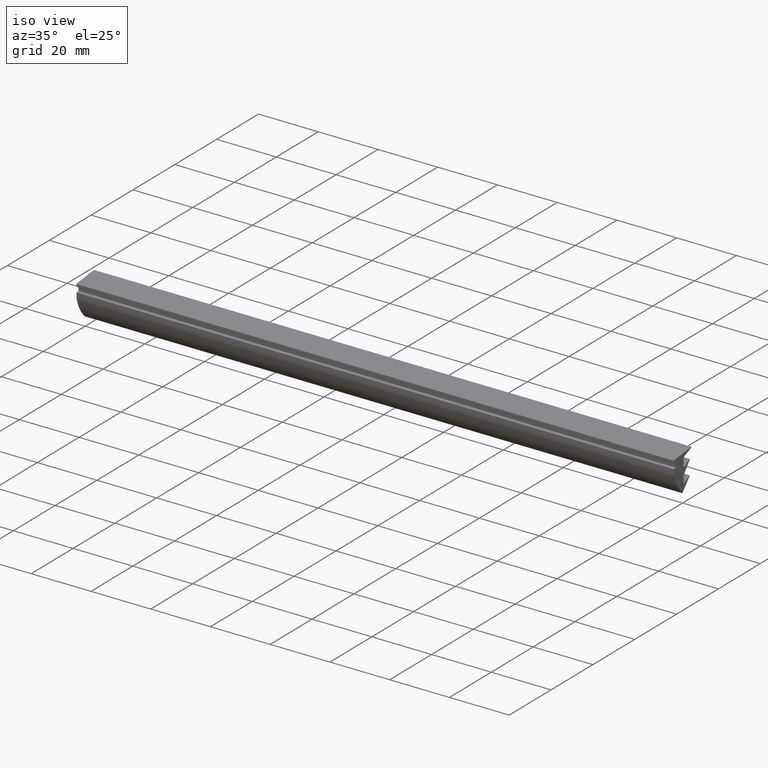
[diagram: clean part render]
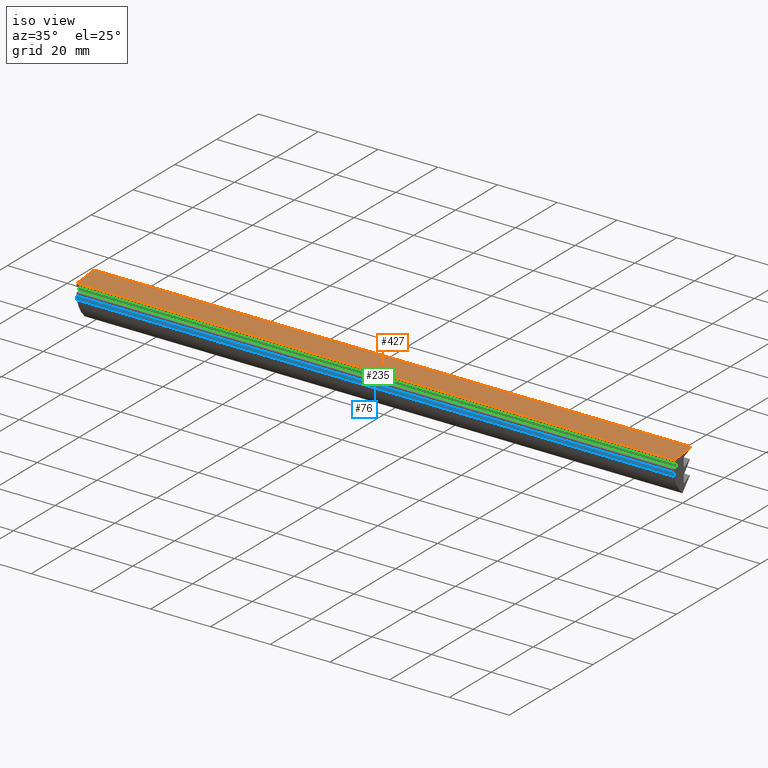
[diagram: same view with three faces highlighted in distinct colors, each labeled with its STEP entity id]
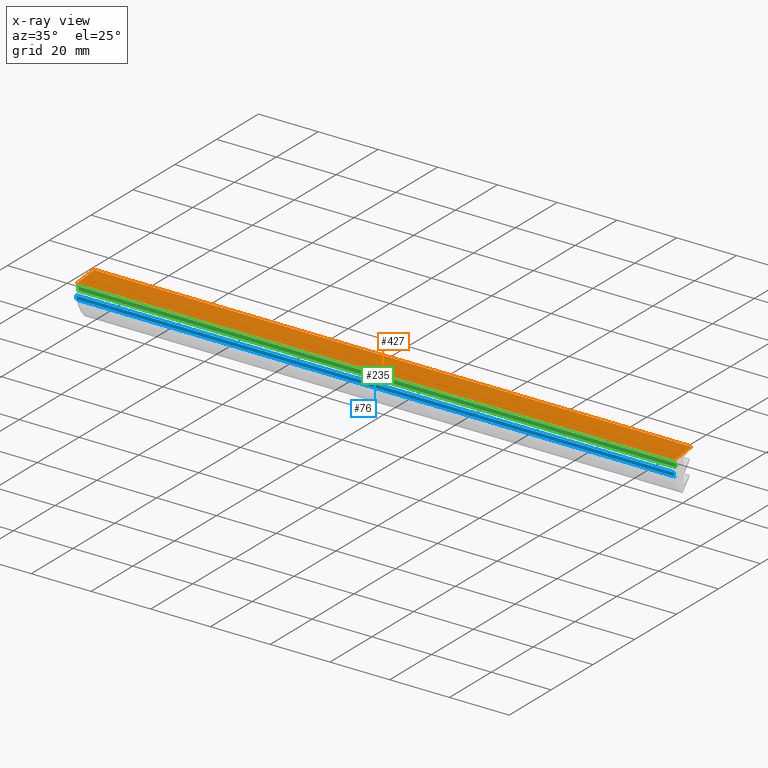
[diagram: x-ray of the same camera — body ghosted, the three highlighted faces saturated]
A machine part, iso view with three faces highlighted in distinct colors.
The next image is the same camera in x-ray (body ghosted, the three faces saturated) — at least one of them is partly hidden behind the body in this view.
Their STEP definitions:

[orange] entity #427 — the highlighted planar face has unit normal (0, -0.1167, 0.9932).
#369=CARTESIAN_POINT('',(0.0,-3.947850489387960,11.414431863419185));
#370=VERTEX_POINT('',#369);
#379=CARTESIAN_POINT('',(200.0,-3.947850489387960,11.414431863419185));
#380=VERTEX_POINT('',#379);
#388=CARTESIAN_POINT('',(200.0,-3.947850489387960,11.414431863419185));
#389=DIRECTION('',(-1.0,0.0,0.0));
#390=VECTOR('',#389,200.0);
#391=LINE('',#388,#390);
#392=EDGE_CURVE('',#380,#370,#391,.T.);
#397=CARTESIAN_POINT('',(210.0,-4.355091858343172,11.366566581108046));
#398=DIRECTION('',(0.0,-0.116731877628694,0.993163465269076));
#399=DIRECTION('',(0.0,0.993163465269076,0.116731877628694));
#400=AXIS2_PLACEMENT_3D('',#397,#398,#399);
#401=PLANE('',#400);
#402=CARTESIAN_POINT('',(0.0,4.196976889716321,12.371737509642145));
#403=VERTEX_POINT('',#402);
#404=CARTESIAN_POINT('',(0.0,-3.947850489387960,11.414431863419193));
#405=DIRECTION('',(0.0,0.993163465269076,0.116731877628694));
#406=VECTOR('',#405,8.200893069397814);
#407=LINE('',#404,#406);
#408=EDGE_CURVE('',#370,#403,#407,.T.);
#409=ORIENTED_EDGE('',*,*,#408,.F.);
#410=ORIENTED_EDGE('',*,*,#392,.F.);
#411=CARTESIAN_POINT('',(200.0,4.196976889716321,12.371737509642145));
#412=VERTEX_POINT('',#411);
#413=CARTESIAN_POINT('',(200.0,-3.947850489387960,11.414431863419193));
#414=DIRECTION('',(0.0,0.993163465269076,0.116731877628694));
#415=VECTOR('',#414,8.200893069397814);
#416=LINE('',#413,#415);
#417=EDGE_CURVE('',#380,#412,#416,.T.);
#418=ORIENTED_EDGE('',*,*,#417,.T.);
#419=CARTESIAN_POINT('',(200.0,4.196976889716321,12.371737509642145));
#420=DIRECTION('',(-1.0,0.0,0.0));
#421=VECTOR('',#420,200.0);
#422=LINE('',#419,#421);
#423=EDGE_CURVE('',#412,#403,#422,.T.);
#424=ORIENTED_EDGE('',*,*,#423,.T.);
#425=EDGE_LOOP('',(#409,#410,#418,#424));
#426=FACE_OUTER_BOUND('',#425,.T.);
#427=ADVANCED_FACE('',(#426),#401,.T.);

[blue] entity #76 — the highlighted cylindrical surface (edge-blend (fillet) strip) has radius 5.1367 mm, axis along (-1, 0, 0).
#9=CARTESIAN_POINT('',(0.0,-3.967215729280877,6.477351340832984));
#10=VERTEX_POINT('',#9);
#26=CARTESIAN_POINT('',(200.0,-3.967215729280877,6.477351340832984));
#27=VERTEX_POINT('',#26);
#35=CARTESIAN_POINT('',(200.0,-3.967215729280877,6.477351340832984));
#36=DIRECTION('',(-1.0,0.0,0.0));
#37=VECTOR('',#36,200.0);
#38=LINE('',#35,#37);
#39=EDGE_CURVE('',#27,#10,#38,.T.);
#44=CARTESIAN_POINT('',(200.000000010000010,1.012162107598378,7.738753825486475));
#45=DIRECTION('',(-1.0,0.0,0.0));
#46=DIRECTION('',(0.0,0.992315294280383,0.123735026315252));
#47=AXIS2_PLACEMENT_3D('',#44,#45,#46);
#48=CYLINDRICAL_SURFACE('',#47,5.136666221460594);
#49=CARTESIAN_POINT('',(0.0,-4.124504113862219,7.738753825486475));
#50=VERTEX_POINT('',#49);
#51=CARTESIAN_POINT('',(0.0,1.012162107598375,7.738753825486475));
#52=DIRECTION('',(-1.0,0.0,0.0));
#53=DIRECTION('',(0.0,1.0,-6.123234E-017));
#54=AXIS2_PLACEMENT_3D('',#51,#52,#53);
#55=CIRCLE('',#54,5.136666221460594);
#56=EDGE_CURVE('',#10,#50,#55,.T.);
#57=ORIENTED_EDGE('',*,*,#56,.F.);
#58=ORIENTED_EDGE('',*,*,#39,.F.);
#59=CARTESIAN_POINT('',(200.0,-4.124504113862219,7.738753825486475));
#60=VERTEX_POINT('',#59);
#61=CARTESIAN_POINT('',(200.0,1.012162107598375,7.738753825486475));
#62=DIRECTION('',(-1.0,0.0,0.0));
#63=DIRECTION('',(0.0,1.0,-6.123234E-017));
#64=AXIS2_PLACEMENT_3D('',#61,#62,#63);
#65=CIRCLE('',#64,5.136666221460594);
#66=EDGE_CURVE('',#27,#60,#65,.T.);
#67=ORIENTED_EDGE('',*,*,#66,.T.);
#68=CARTESIAN_POINT('',(200.0,-4.124504113862219,7.738753825486475));
#69=DIRECTION('',(-1.0,0.0,0.0));
#70=VECTOR('',#69,200.0);
#71=LINE('',#68,#70);
#72=EDGE_CURVE('',#60,#50,#71,.T.);
#73=ORIENTED_EDGE('',*,*,#72,.T.);
#74=EDGE_LOOP('',(#57,#58,#67,#73));
#75=FACE_OUTER_BOUND('',#74,.T.);
#76=ADVANCED_FACE('',(#75),#48,.T.);

[green] entity #235 — the highlighted planar face has unit normal (0, -1, 0).
#177=CARTESIAN_POINT('',(0.0,-3.130740454533157,8.914944930319708));
#178=VERTEX_POINT('',#177);
#187=CARTESIAN_POINT('',(200.0,-3.130740454533157,8.914944930319708));
#188=VERTEX_POINT('',#187);
#196=CARTESIAN_POINT('',(200.0,-3.130740454533157,8.914944930319708));
#197=DIRECTION('',(-1.0,0.0,0.0));
#198=VECTOR('',#197,200.0);
#199=LINE('',#196,#198);
#200=EDGE_CURVE('',#188,#178,#199,.T.);
#205=CARTESIAN_POINT('',(-10.0,-3.130740454533157,8.853196808424455));
#206=DIRECTION('',(0.0,-1.0,0.0));
#207=DIRECTION('',(1.0,0.0,0.0));
#208=AXIS2_PLACEMENT_3D('',#205,#206,#207);
#209=PLANE('',#208);
#210=CARTESIAN_POINT('',(0.0,-3.130740454533157,10.149907368224751));
#211=VERTEX_POINT('',#210);
#212=CARTESIAN_POINT('',(0.0,-3.130740454533157,8.914944930319708));
#213=DIRECTION('',(0.0,0.0,1.0));
#214=VECTOR('',#213,1.234962437905043);
#215=LINE('',#212,#214);
#216=EDGE_CURVE('',#178,#211,#215,.T.);
#217=ORIENTED_EDGE('',*,*,#216,.F.);
#218=ORIENTED_EDGE('',*,*,#200,.F.);
#219=CARTESIAN_POINT('',(200.0,-3.130740454533157,10.149907368224751));
#220=VERTEX_POINT('',#219);
#221=CARTESIAN_POINT('',(200.0,-3.130740454533157,8.914944930319708));
#222=DIRECTION('',(0.0,0.0,1.0));
#223=VECTOR('',#222,1.234962437905043);
#224=LINE('',#221,#223);
#225=EDGE_CURVE('',#188,#220,#224,.T.);
#226=ORIENTED_EDGE('',*,*,#225,.T.);
#227=CARTESIAN_POINT('',(200.0,-3.130740454533157,10.149907368224751));
#228=DIRECTION('',(-1.0,0.0,0.0));
#229=VECTOR('',#228,200.0);
#230=LINE('',#227,#229);
#231=EDGE_CURVE('',#220,#211,#230,.T.);
#232=ORIENTED_EDGE('',*,*,#231,.T.);
#233=EDGE_LOOP('',(#217,#218,#226,#232));
#234=FACE_OUTER_BOUND('',#233,.T.);
#235=ADVANCED_FACE('',(#234),#209,.T.);